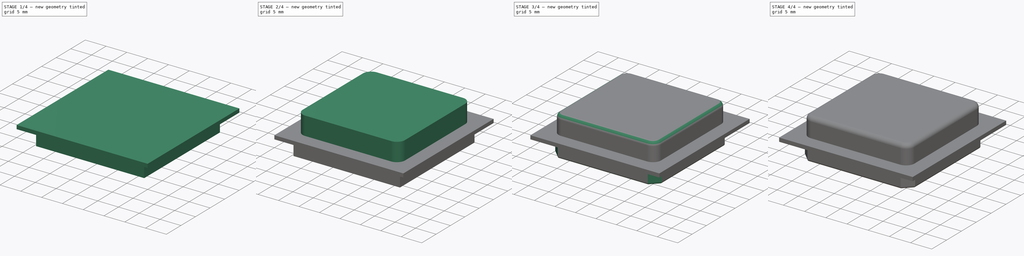
[diagram: build sequence overview — one tinted view per stage of 4, left to right]
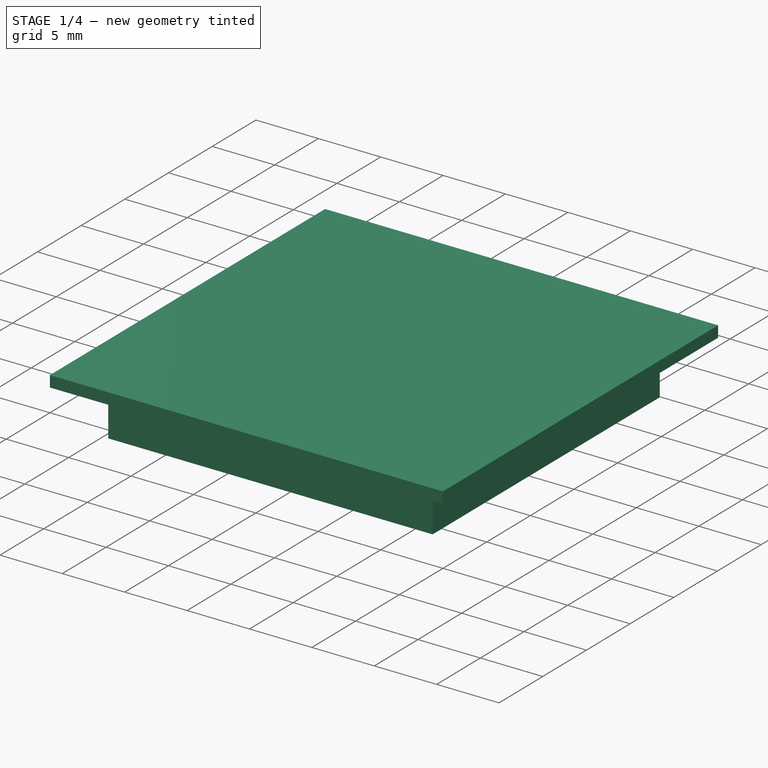
[diagram: stage 1 of 4 — iso view after this stage's code; geometry added in this stage tinted green]
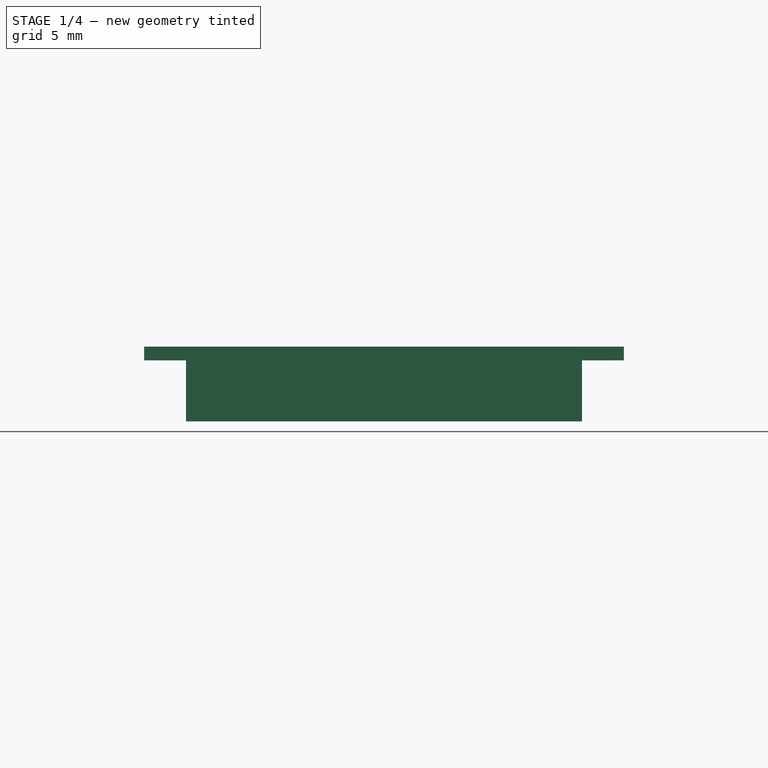
[diagram: stage 1 of 4 — front view after this stage's code; geometry added in this stage tinted green]
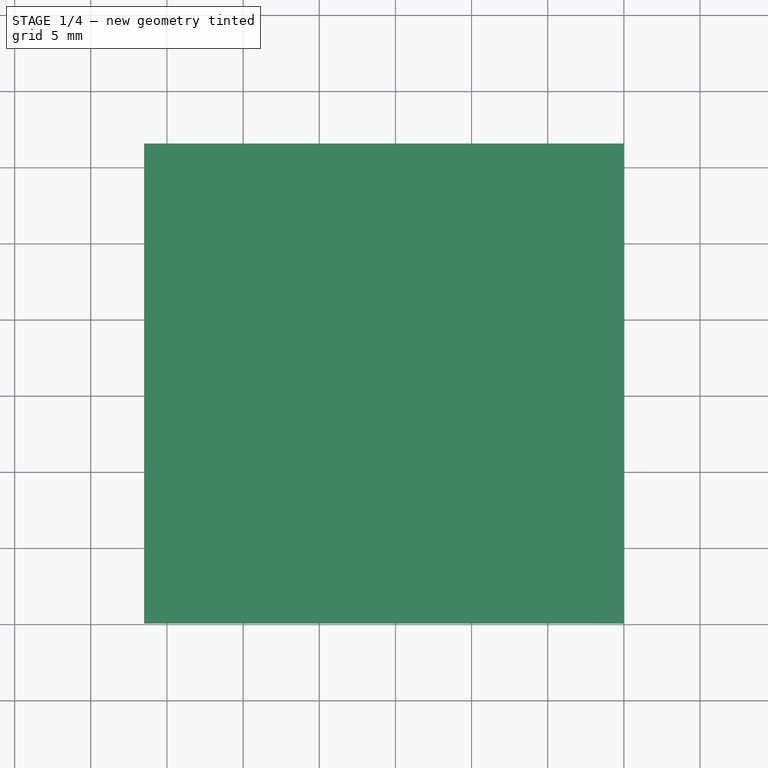
[diagram: stage 1 of 4 — top view after this stage's code; geometry added in this stage tinted green]
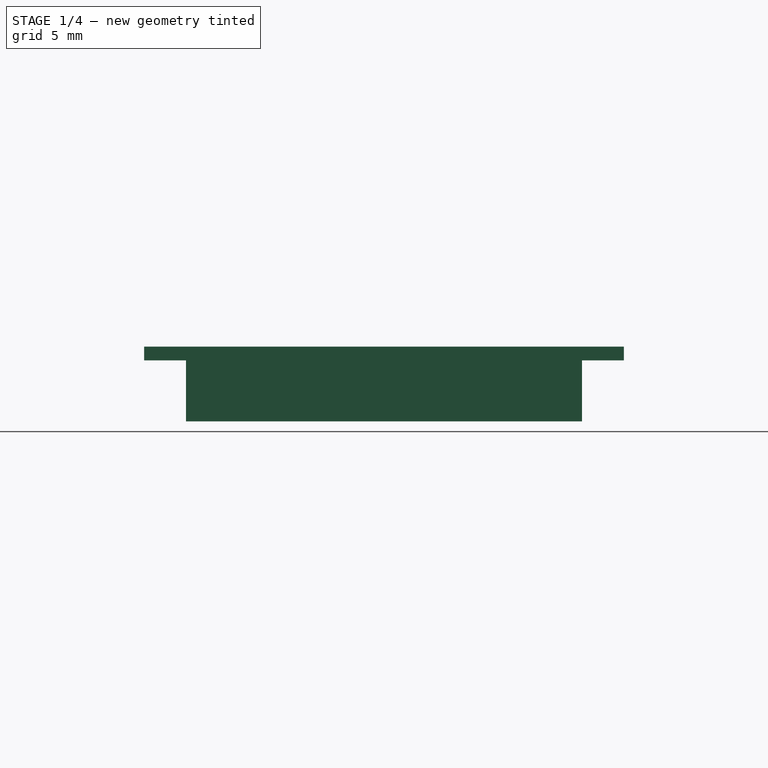
[diagram: stage 1 of 4 — right view after this stage's code; geometry added in this stage tinted green]
FCSTD DOCUMENT  (FreeCAD 0.18.1R)
Label: GPS-a
License: All rights reserved
LicenseURL: http://en.wikipedia.org/wiki/All_rights_reserved
objects: Sketcher::SketchObject×5, PartDesign::Pad×4, PartDesign::Fillet×3, PartDesign::Chamfer×1, PartDesign::Pocket×1, PartDesign::Body×1
note: 20 computed .brp shape members not serialized (recipe doc carries the construction recipe); baked Part::Feature solids carry a one-line shape summary decoded from their .brp

FEATURE [Sketcher::SketchObject] Sketch
  MapMode = 5
  Support = -> [XY_Plane]
  sketch-geometry (4):
    g0: LineSegment StartX=0 StartY=0 StartZ=0 EndX=-31.5 EndY=0 EndZ=0
    g1: LineSegment StartX=-31.5 StartY=0 StartZ=0 EndX=-31.5 EndY=31.5 EndZ=0
    g2: LineSegment StartX=-31.5 StartY=31.5 StartZ=0 EndX=0 EndY=31.5 EndZ=0
    g3: LineSegment StartX=0 StartY=31.5 StartZ=0 EndX=0 EndY=0 EndZ=0
  constraints (11):
    c: Coincident(g0,g1)
    c: Coincident(g1,g2)
    c: Coincident(g2,g3)
    c: Coincident(g3,g0)
    c: Horizontal(g0)
    c: Horizontal(g2)
    c: Vertical(g1)
    c: Vertical(g3)
    c: Distance(g2) = 31.5
    c: Distance(g3) = 31.5
    c: Coincident(g0,g-1)
FEATURE [PartDesign::Pad] Pad
  Length = 0.9
  Length2 = 100
  Profile = -> Sketch
  Type = 0
FEATURE [Sketcher::SketchObject] Sketch001
  ExternalGeometry = -> [Pad]
  MapMode = 5
  Placement = pos=(0,0,0) rot=(1,0,0;3.14159rad)
  Support = -> [Pad]
  expr: Constraints[11] = (31.5 - 26) / 2
  expr: Constraints[10] = (31.5 - 26) / 2
  sketch-geometry (4):
    g0: LineSegment StartX=-28.75 StartY=-2.75 StartZ=0 EndX=-2.75 EndY=-2.75 EndZ=0
    g1: LineSegment StartX=-2.75 StartY=-2.75 StartZ=0 EndX=-2.75 EndY=-28.75 EndZ=0
    g2: LineSegment StartX=-2.75 StartY=-28.75 StartZ=0 EndX=-28.75 EndY=-28.75 EndZ=0
    g3: LineSegment StartX=-28.75 StartY=-28.75 StartZ=0 EndX=-28.75 EndY=-2.75 EndZ=0
  constraints (12):
    c: Coincident(g0,g1)
    c: Coincident(g1,g2)
    c: Coincident(g2,g3)
    c: Coincident(g3,g0)
    c: Horizontal(g0)
    c: Horizontal(g2)
    c: Vertical(g1)
    c: Vertical(g3)
    c: Distance(g0) = 26
    c: Distance(g1) = 26
    c: DistanceX(g0,g-1) = 2.75
    c: DistanceY(g0,g-1) = 2.75
FEATURE [PartDesign::Pad] Pad001
  BaseFeature = -> Pad
  Length = 4
  Length2 = 100
  Profile = -> Sketch001
  Type = 0
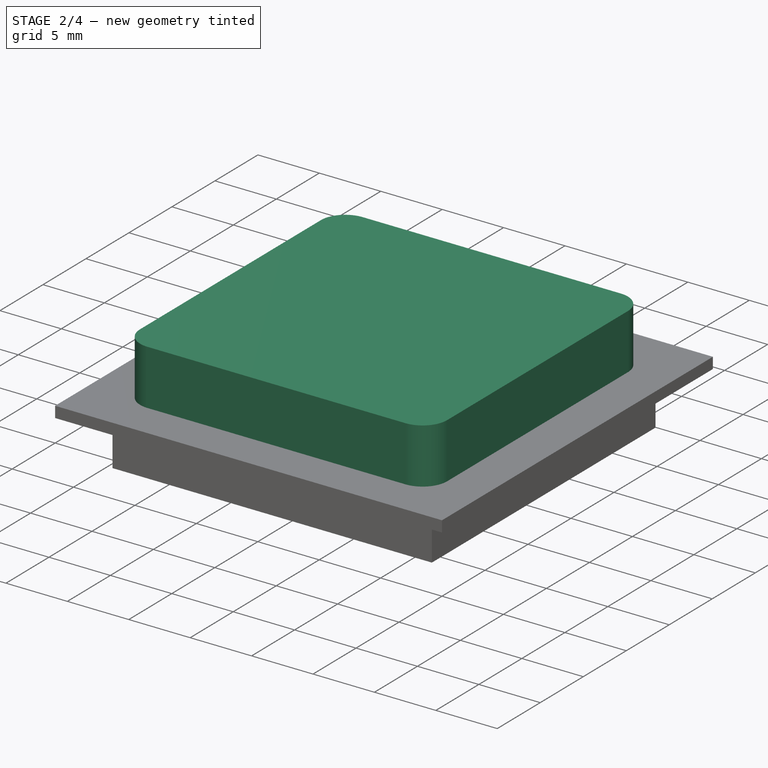
[diagram: stage 2 of 4 — iso view after this stage's code; geometry added in this stage tinted green]
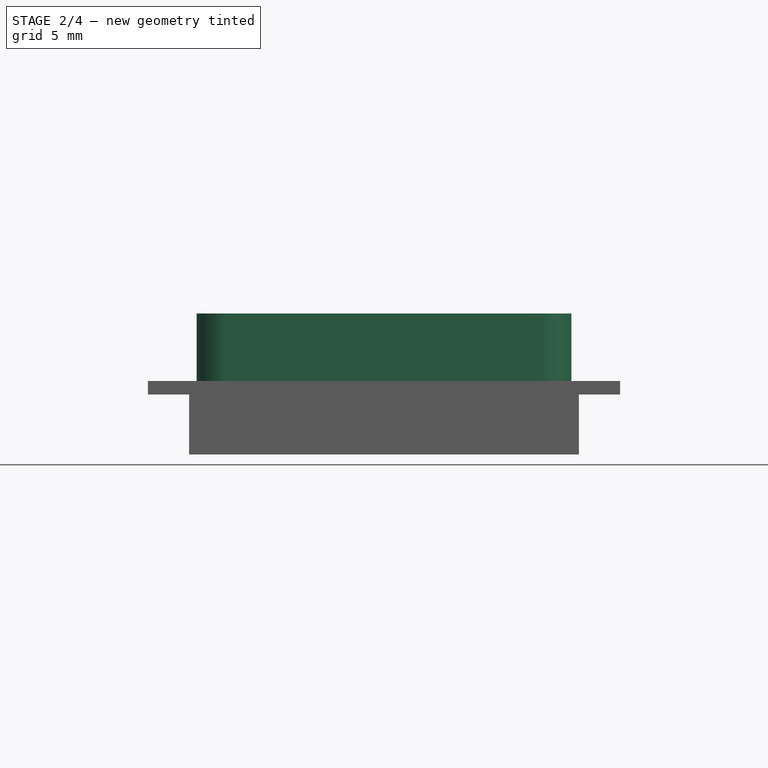
[diagram: stage 2 of 4 — front view after this stage's code; geometry added in this stage tinted green]
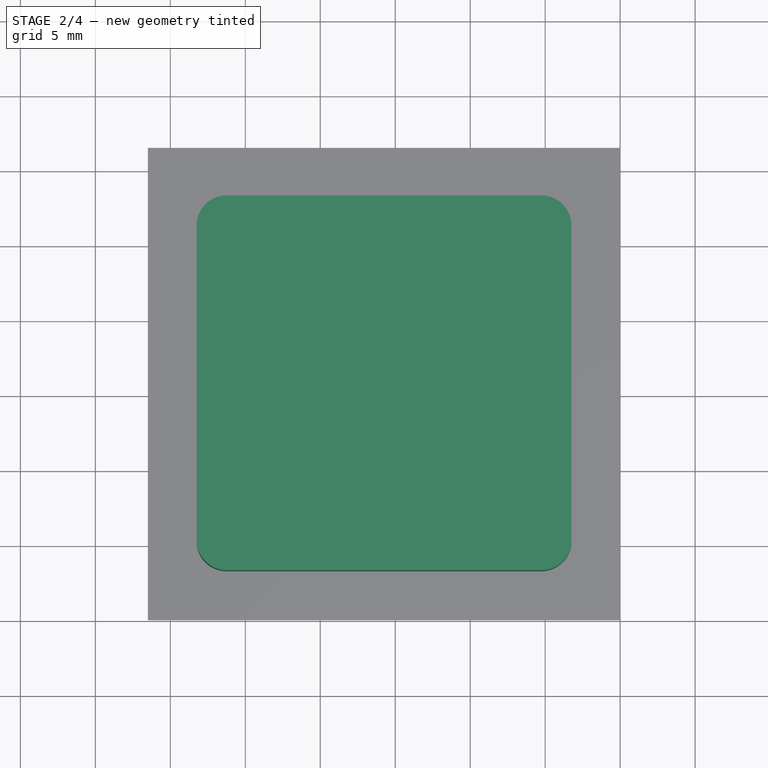
[diagram: stage 2 of 4 — top view after this stage's code; geometry added in this stage tinted green]
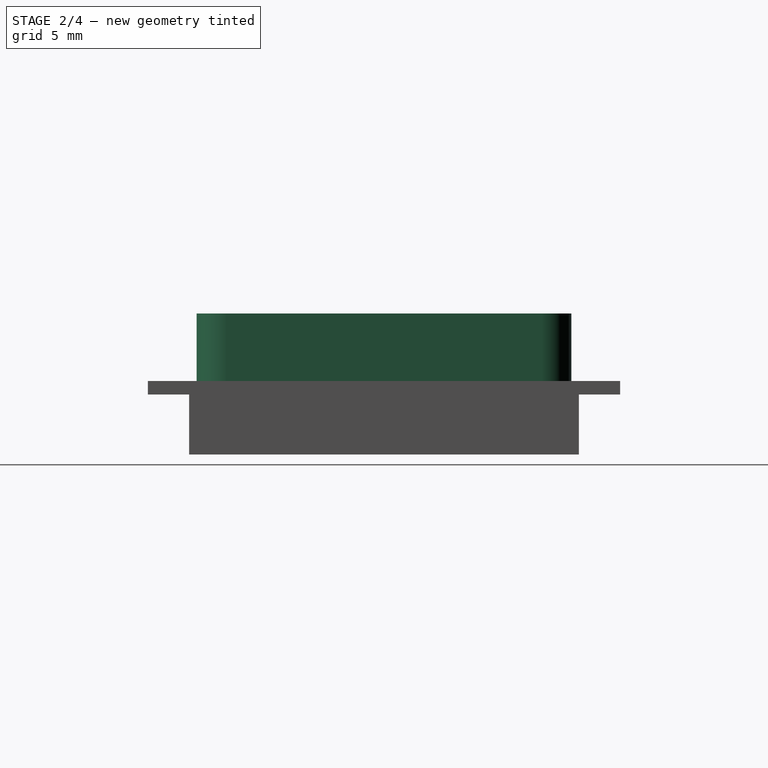
[diagram: stage 2 of 4 — right view after this stage's code; geometry added in this stage tinted green]
FEATURE [Sketcher::SketchObject] Sketch002
  ExternalGeometry = -> [Pad001]
  MapMode = 5
  Placement = pos=(0,0,0.9) rot=(0,0,1;0rad)
  Support = -> [Pad001]
  expr: Constraints[11] = (31.5 - 25) / 2
  expr: Constraints[10] = (31.5 - 25) / 2
  sketch-geometry (4):
    g0: LineSegment StartX=-28.25 StartY=28.25 StartZ=0 EndX=-3.25 EndY=28.25 EndZ=0
    g1: LineSegment StartX=-3.25 StartY=28.25 StartZ=0 EndX=-3.25 EndY=3.25 EndZ=0
    g2: LineSegment StartX=-3.25 StartY=3.25 StartZ=0 EndX=-28.25 EndY=3.25 EndZ=0
    g3: LineSegment StartX=-28.25 StartY=3.25 StartZ=0 EndX=-28.25 EndY=28.25 EndZ=0
  constraints (12):
    c: Coincident(g0,g1)
    c: Coincident(g1,g2)
    c: Coincident(g2,g3)
    c: Coincident(g3,g0)
    c: Horizontal(g0)
    c: Horizontal(g2)
    c: Vertical(g1)
    c: Vertical(g3)
    c: Distance(g0) = 25
    c: Distance(g1) = 25
    c: DistanceX(g0,g-4) = 3.25
    c: DistanceY(g0,g-4) = 3.25
FEATURE [PartDesign::Pad] Pad002
  BaseFeature = -> Pad001
  Length = 4.5
  Length2 = 100
  Profile = -> Sketch002
  Type = 0
FEATURE [PartDesign::Fillet] Fillet
  Base = -> Pad002 [Edge30,Edge32,Edge29,Edge34]
  BaseFeature = -> Pad002
  Radius = 2
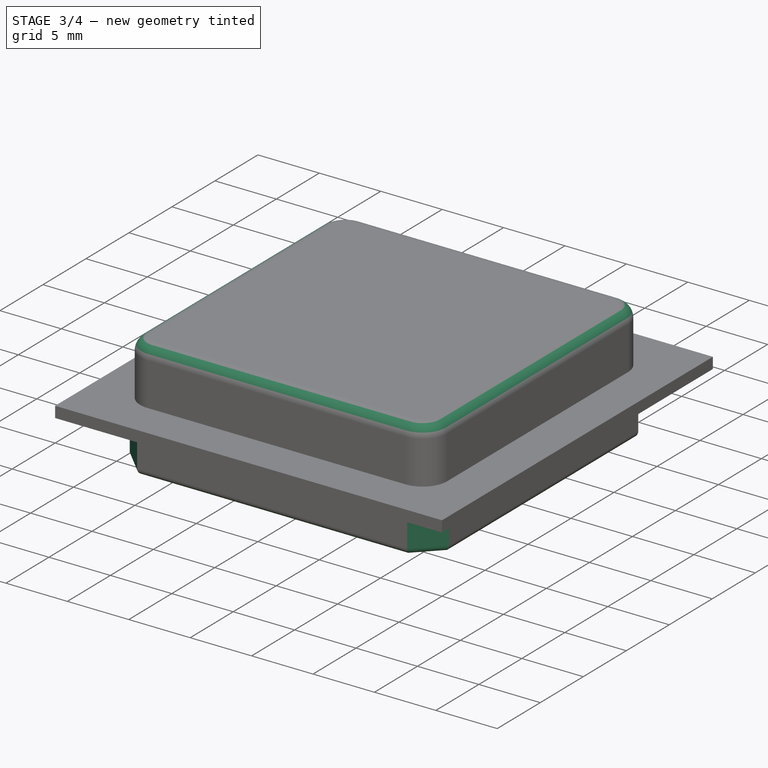
[diagram: stage 3 of 4 — iso view after this stage's code; geometry added in this stage tinted green]
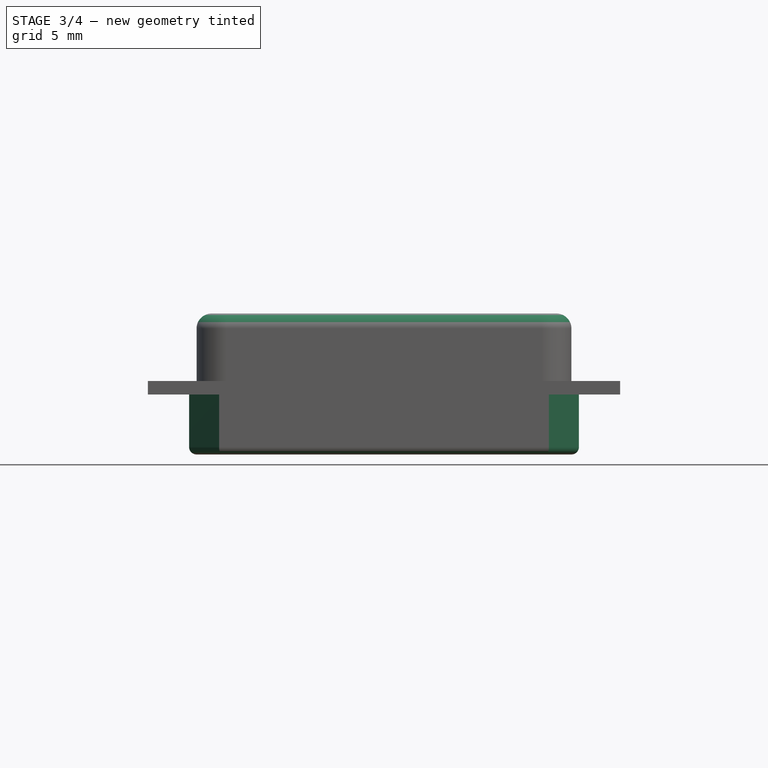
[diagram: stage 3 of 4 — front view after this stage's code; geometry added in this stage tinted green]
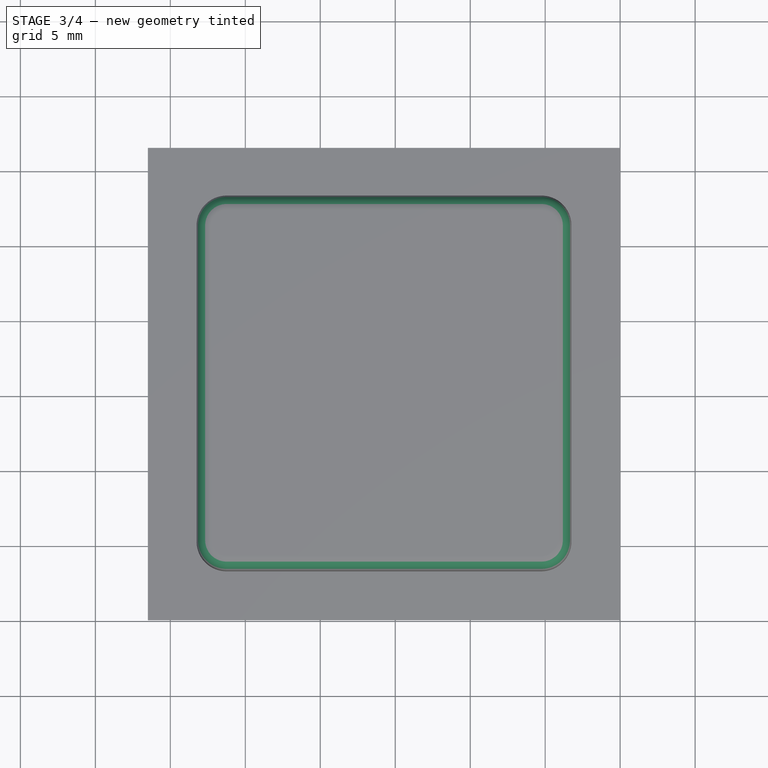
[diagram: stage 3 of 4 — top view after this stage's code; geometry added in this stage tinted green]
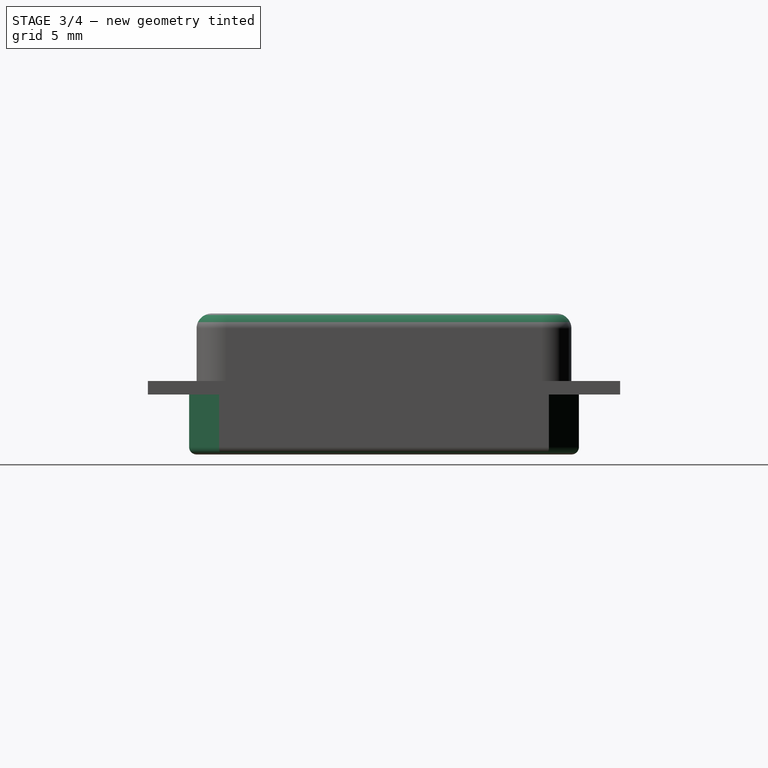
[diagram: stage 3 of 4 — right view after this stage's code; geometry added in this stage tinted green]
FEATURE [PartDesign::Fillet] Fillet001
  Base = -> Fillet [Face14]
  BaseFeature = -> Fillet
  Radius = 1
FEATURE [PartDesign::Chamfer] Chamfer
  Base = -> Fillet001 [Edge62,Edge60,Edge58,Edge57]
  BaseFeature = -> Fillet001
  Size = 2
FEATURE [PartDesign::Fillet] Fillet002
  Base = -> Chamfer [Face14]
  BaseFeature = -> Chamfer
  Radius = 0.5
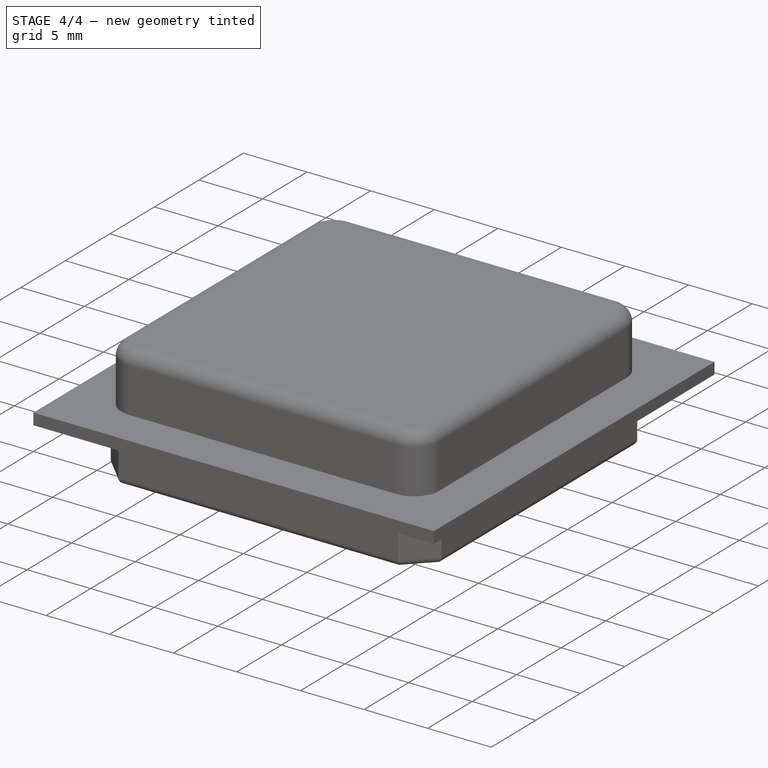
[diagram: stage 4 of 4 — iso view after this stage's code; geometry added in this stage tinted green]
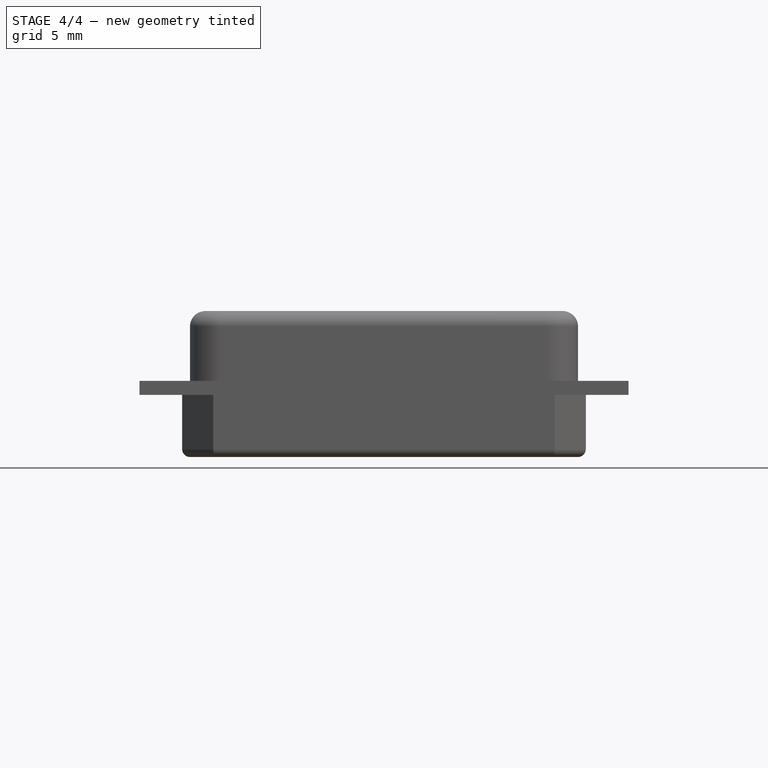
[diagram: stage 4 of 4 — front view after this stage's code; geometry added in this stage tinted green]
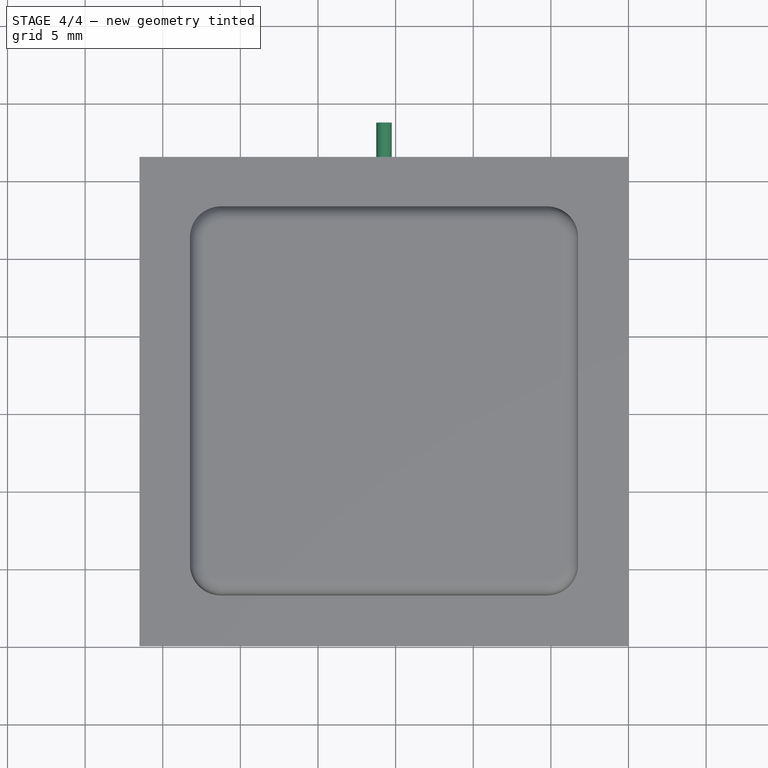
[diagram: stage 4 of 4 — top view after this stage's code; geometry added in this stage tinted green]
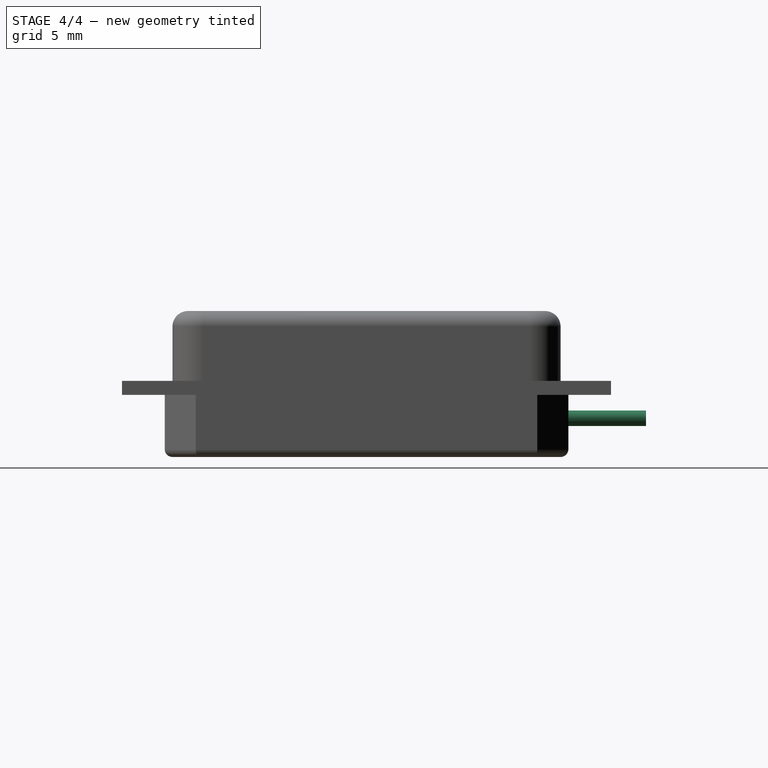
[diagram: stage 4 of 4 — right view after this stage's code; geometry added in this stage tinted green]
FEATURE [Sketcher::SketchObject] Sketch003
  ExternalGeometry = -> [Fillet002]
  MapMode = 5
  Placement = pos=(0,28.75,0) rot=(0,0.707107,0.707107;3.14159rad)
  Support = -> [Fillet002]
  sketch-geometry (1):
    g0: Circle CenterX=15.75 CenterY=-1.5 CenterZ=0 NormalX=0 NormalY=0 NormalZ=1 AngleXU=0 Radius=1.18907
  constraints (2):
    c: Distance(g0,g-5) = 11
    c: Distance(g0,g-4) = 2
FEATURE [PartDesign::Pocket] Pocket
  BaseFeature = -> Fillet002
  Length = 2
  Length2 = 100
  Profile = -> Sketch003
  Type = 0
FEATURE [Sketcher::SketchObject] Sketch004
  ExternalGeometry = -> [Pocket]
  MapMode = 5
  Placement = pos=(0,26.75,0) rot=(0,0.707107,0.707107;3.14159rad)
  Support = -> [Pocket]
  sketch-geometry (1):
    g0: Circle CenterX=15.7473 CenterY=-1.50402 CenterZ=0 NormalX=0 NormalY=0 NormalZ=1 AngleXU=0 Radius=0.5
  constraints (1):
    c: Diameter(g0) = 1
FEATURE [PartDesign::Pad] Pad003
  BaseFeature = -> Pocket
  Length = 7
  Length2 = 100
  Profile = -> Sketch004
  Type = 0
FEATURE [PartDesign::Body] Body
  Group = -> [Sketch,Pad,Sketch001,Pad001,Sketch002,Pad002,Fillet,Fillet001,Chamfer,Fillet002,Sketch003,Pocket,Sketch004,Pad003]
  Origin = -> Origin
  Tip = -> Pad003
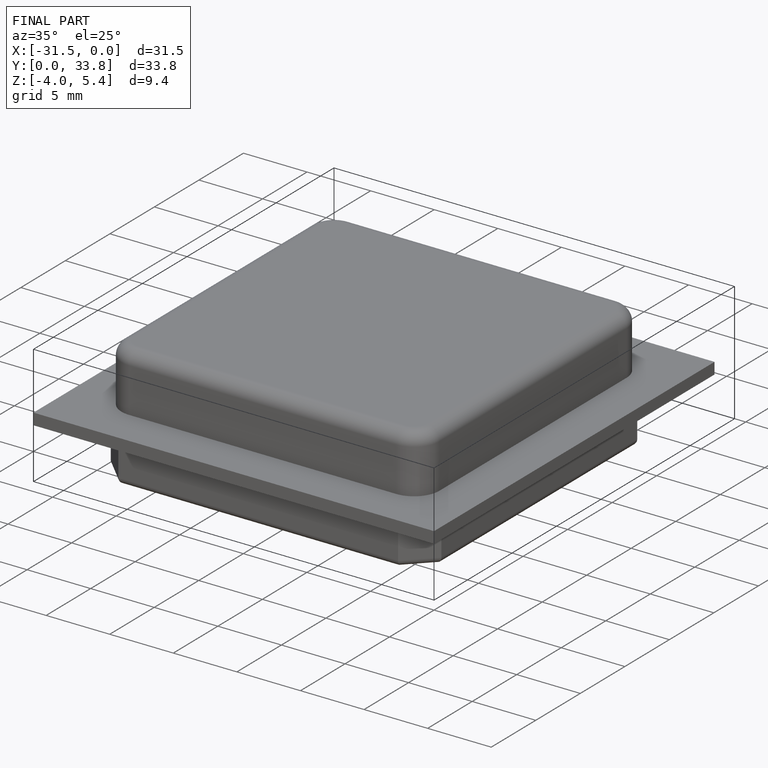
[diagram: finished part — iso view with bounding-box wireframe]
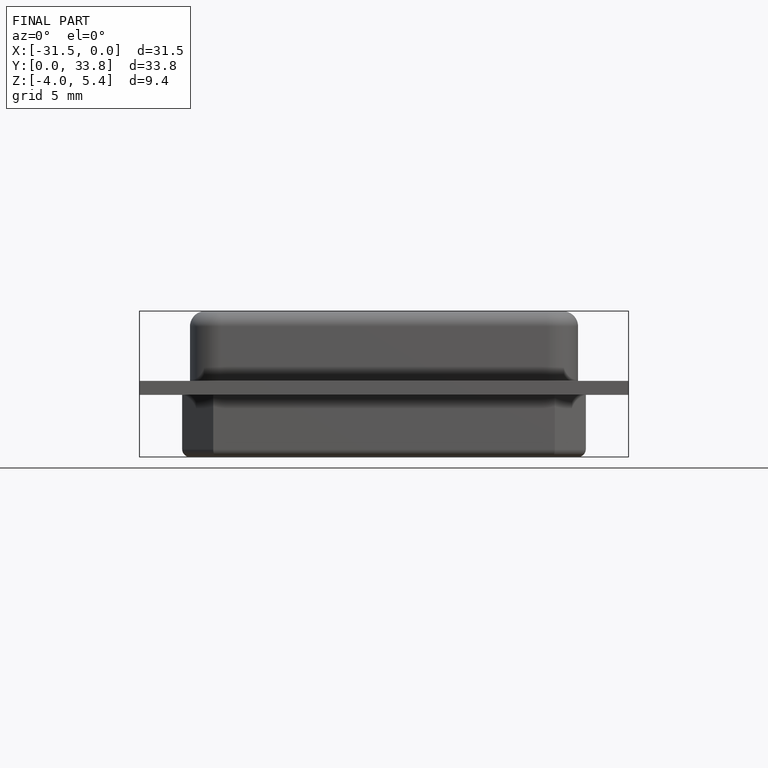
[diagram: finished part — front view with bounding-box wireframe]
